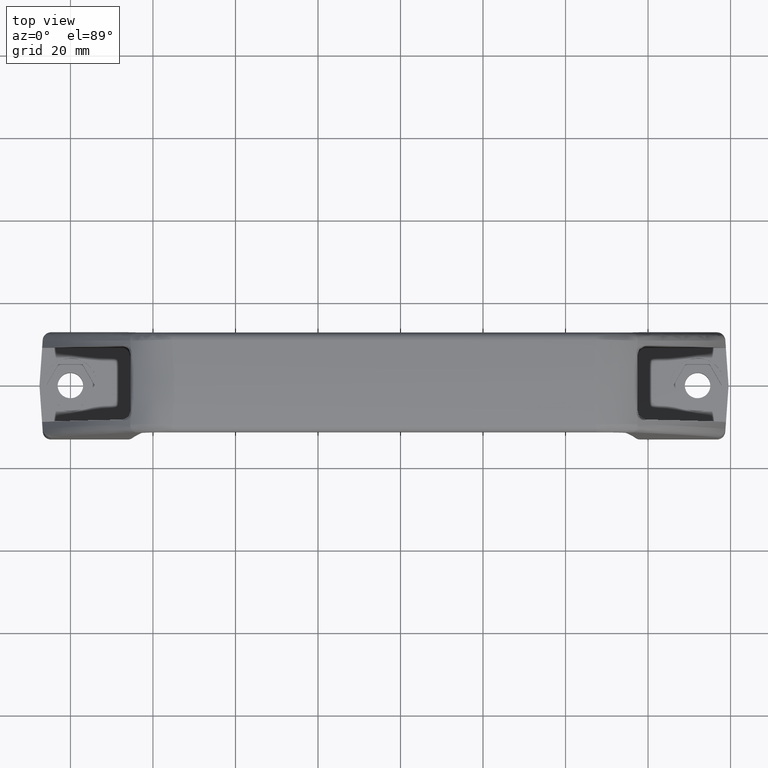
[diagram: clean part render]
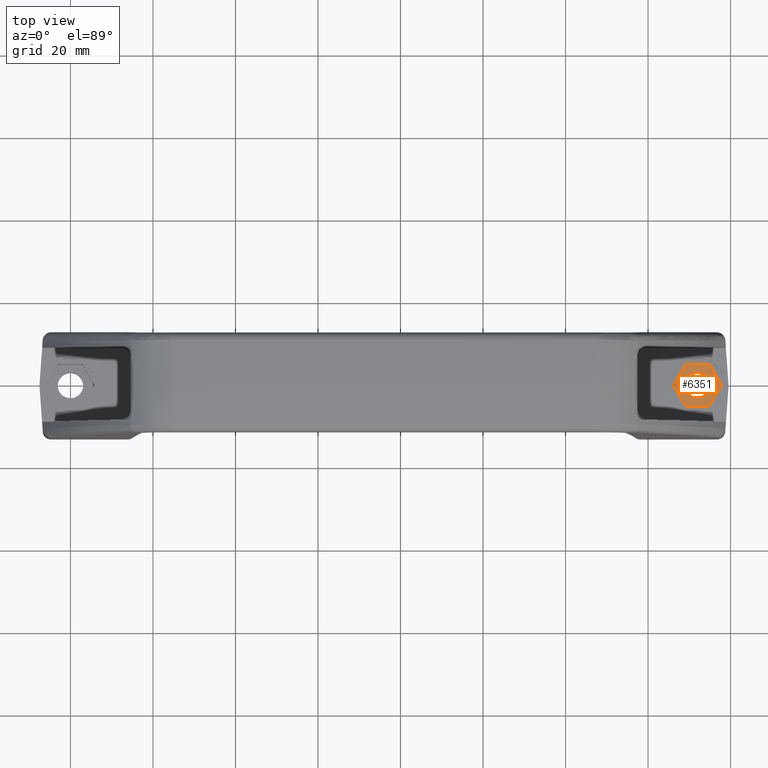
[diagram: same view with one face highlighted and labeled with its STEP entity id]
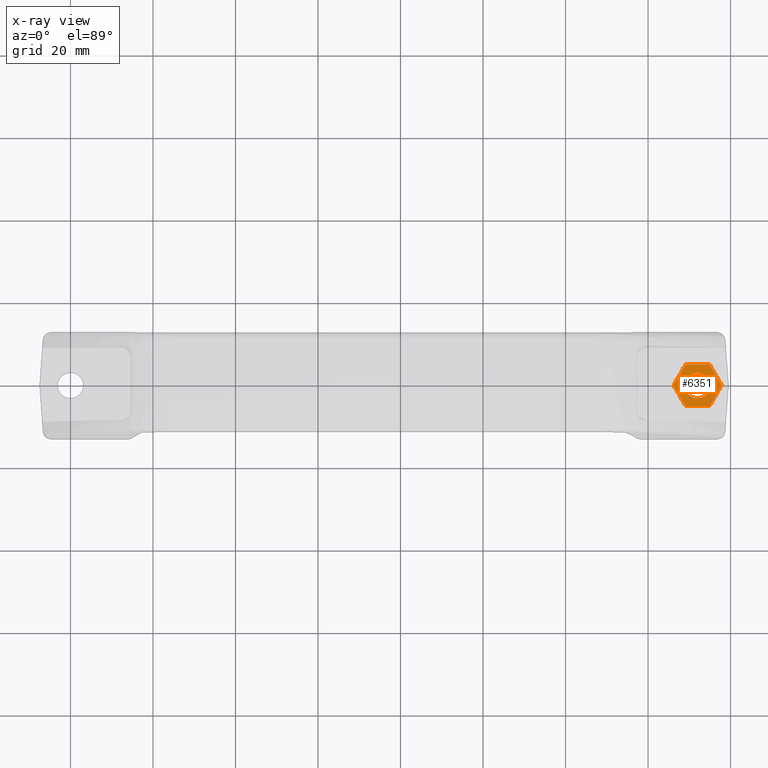
[diagram: x-ray of the same camera — body ghosted, the highlighted face saturated]
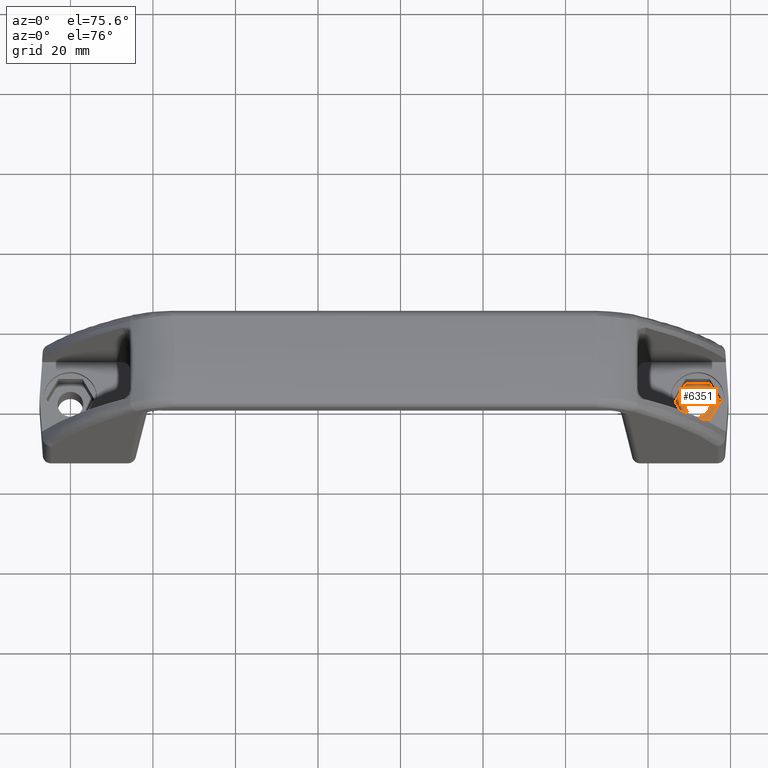
[diagram: same view with one face highlighted and labeled with its STEP entity id]
A machine part, top view. The second image highlights one B-rep face of the part: STEP entity #6351.
The next image is the same camera in x-ray: the body ghosted, the highlighted face saturated — about 0% of this face is hidden behind the body in this view.
A second angle (auxiliary view) of the same face is appended — the face is thin or edge-on in the first view.
In plain terms, the highlighted face is a freeform B-spline surface patch.
Its self-contained STEP definition (entity closure, byte-faithful):
#457=CARTESIAN_POINT('',(151.634101444869600,-3.078329677869707,7.000000617466201));
#458=VERTEX_POINT('',#457);
#464=CARTESIAN_POINT('',(155.100007737520090,0.0,7.000000617466201));
#465=VERTEX_POINT('',#464);
#466=CARTESIAN_POINT('',(151.634101444869630,-3.078329677869708,7.000000617466201));
#467=CARTESIAN_POINT('',(151.816412810037720,-3.100000147242100,7.000000617466201));
#468=CARTESIAN_POINT('',(152.000007590277990,-3.100000147242100,7.000000617466201));
#469=CARTESIAN_POINT('',(155.100007737520170,-3.100000147242100,7.000000617466200));
#470=CARTESIAN_POINT('',(155.100007737520090,0.0,7.000000617466201));
#478=(BOUNDED_CURVE()B_SPLINE_CURVE(2,(#466,#467,#468,#469,#470),.UNSPECIFIED.,.F.,.U.)B_SPLINE_CURVE_WITH_KNOTS((3,2,3),(0.229562473450550,0.250000000000000,0.500000000000000),.UNSPECIFIED.)CURVE()GEOMETRIC_REPRESENTATION_ITEM()RATIONAL_B_SPLINE_CURVE((0.956026754060299,0.976055948257385,1.0,0.707106781186547,1.0))REPRESENTATION_ITEM(''));
#479=EDGE_CURVE('',#458,#465,#478,.T.);
#481=CARTESIAN_POINT('',(152.189258072401910,3.094218022039970,7.000000617466201));
#482=VERTEX_POINT('',#481);
#483=CARTESIAN_POINT('',(155.100007737520090,0.0,7.000000617466201));
#484=CARTESIAN_POINT('',(155.100007737520120,2.916188944829819,7.000000617466200));
#485=CARTESIAN_POINT('',(152.189258072401940,3.094218022039970,7.000000617466201));
#493=(BOUNDED_CURVE()B_SPLINE_CURVE(2,(#483,#484,#485),.UNSPECIFIED.,.F.,.U.)B_SPLINE_CURVE_WITH_KNOTS((3,3),(0.500000000000000,0.739332962177632),.UNSPECIFIED.)CURVE()GEOMETRIC_REPRESENTATION_ITEM()RATIONAL_B_SPLINE_CURVE((1.0,0.719603993358540,0.976072041535317))REPRESENTATION_ITEM(''));
#494=EDGE_CURVE('',#465,#482,#493,.T.);
#568=CARTESIAN_POINT('',(148.900007443035890,0.0,7.000000617466201));
#569=VERTEX_POINT('',#568);
#570=CARTESIAN_POINT('',(152.189258072401880,3.094218022039969,7.000000617466201));
#571=CARTESIAN_POINT('',(152.094721161580680,3.100000147242100,7.000000617466200));
#572=CARTESIAN_POINT('',(152.000007590277990,3.100000147242100,7.000000617466201));
#573=CARTESIAN_POINT('',(148.900007443035950,3.100000147242100,7.000000617466200));
#574=CARTESIAN_POINT('',(148.900007443035890,0.0,7.000000617466201));
#582=(BOUNDED_CURVE()B_SPLINE_CURVE(2,(#570,#571,#572,#573,#574),.UNSPECIFIED.,.F.,.U.)B_SPLINE_CURVE_WITH_KNOTS((3,2,3),(0.739332962177633,0.750000000000000,1.0),.UNSPECIFIED.)CURVE()GEOMETRIC_REPRESENTATION_ITEM()RATIONAL_B_SPLINE_CURVE((0.976072041535319,0.987502787828008,1.0,0.707106781186547,1.0))REPRESENTATION_ITEM(''));
#583=EDGE_CURVE('',#482,#569,#582,.T.);
#585=CARTESIAN_POINT('',(148.900007443035890,0.0,7.000000617466201));
#586=CARTESIAN_POINT('',(148.900007443035950,-2.753341160157968,7.000000617466200));
#587=CARTESIAN_POINT('',(151.634101444869630,-3.078329677869708,7.000000617466201));
#595=(BOUNDED_CURVE()B_SPLINE_CURVE(2,(#585,#586,#587),.UNSPECIFIED.,.F.,.U.)B_SPLINE_CURVE_WITH_KNOTS((3,3),(0.0,0.229562473450550),.UNSPECIFIED.)CURVE()GEOMETRIC_REPRESENTATION_ITEM()RATIONAL_B_SPLINE_CURVE((1.0,0.731050832929162,0.956026754060299))REPRESENTATION_ITEM(''));
#596=EDGE_CURVE('',#569,#458,#595,.T.);
#6178=CARTESIAN_POINT('',(154.915626588174010,-5.050000239862700,7.000000617466201));
#6179=VERTEX_POINT('',#6178);
#6185=CARTESIAN_POINT('',(149.084388592383390,-5.050000239862190,7.000000617466201));
#6186=VERTEX_POINT('',#6185);
#6187=CARTESIAN_POINT('',(154.915626588174010,-5.050000239862700,7.000000617466201));
#6188=CARTESIAN_POINT('',(149.084388592383390,-5.050000239862190,7.000000617466201));
#6189=QUASI_UNIFORM_CURVE('',1,(#6187,#6188),.UNSPECIFIED.,.F.,.U.);
#6190=EDGE_CURVE('',#6179,#6186,#6189,.T.);
#6212=CARTESIAN_POINT('',(157.831245586065510,-1.477929E-012,7.000000617466201));
#6213=VERTEX_POINT('',#6212);
#6219=CARTESIAN_POINT('',(157.831245586065510,-1.477929E-012,7.000000617466201));
#6220=CARTESIAN_POINT('',(154.915626588174010,-5.050000239862700,7.000000617466201));
#6221=QUASI_UNIFORM_CURVE('',1,(#6219,#6220),.UNSPECIFIED.,.F.,.U.);
#6222=EDGE_CURVE('',#6213,#6179,#6221,.T.);
#6240=CARTESIAN_POINT('',(154.915626588171990,5.050000239862119,7.000000617466201));
#6241=VERTEX_POINT('',#6240);
#6247=CARTESIAN_POINT('',(154.915626588171990,5.050000239862119,7.000000617466201));
#6248=CARTESIAN_POINT('',(157.831245586065510,-1.477929E-012,7.000000617466201));
#6249=QUASI_UNIFORM_CURVE('',1,(#6247,#6248),.UNSPECIFIED.,.F.,.U.);
#6250=EDGE_CURVE('',#6241,#6213,#6249,.T.);
#6268=CARTESIAN_POINT('',(149.084388592381200,5.050000239862510,7.000000617466201));
#6269=VERTEX_POINT('',#6268);
#6275=CARTESIAN_POINT('',(149.084388592381200,5.050000239862510,7.000000617466201));
#6276=CARTESIAN_POINT('',(154.915626588171990,5.050000239862119,7.000000617466201));
#6277=QUASI_UNIFORM_CURVE('',1,(#6275,#6276),.UNSPECIFIED.,.F.,.U.);
#6278=EDGE_CURVE('',#6269,#6241,#6277,.T.);
#6296=CARTESIAN_POINT('',(146.168769594490190,1.421085E-012,7.000000617466201));
#6297=VERTEX_POINT('',#6296);
#6303=CARTESIAN_POINT('',(146.168769594490190,1.421085E-012,7.000000617466201));
#6304=CARTESIAN_POINT('',(149.084388592381200,5.050000239862510,7.000000617466201));
#6305=QUASI_UNIFORM_CURVE('',1,(#6303,#6304),.UNSPECIFIED.,.F.,.U.);
#6306=EDGE_CURVE('',#6297,#6269,#6305,.T.);
#6323=CARTESIAN_POINT('',(149.084388592383390,-5.050000239862190,7.000000617466201));
#6324=CARTESIAN_POINT('',(146.168769594490190,1.421085E-012,7.000000617466201));
#6325=QUASI_UNIFORM_CURVE('',1,(#6323,#6324),.UNSPECIFIED.,.F.,.U.);
#6326=EDGE_CURVE('',#6186,#6297,#6325,.T.);
#6332=CARTESIAN_POINT('',(145.586220793308510,5.554495244249022,7.000000617466201));
#6333=CARTESIAN_POINT('',(158.413794804329710,5.554495244249022,7.000000617466201));
#6334=CARTESIAN_POINT('',(145.586220793308510,-5.554495515152336,7.000000617466201));
#6335=CARTESIAN_POINT('',(158.413794804329710,-5.554495515152336,7.000000617466201));
#6336=B_SPLINE_SURFACE_WITH_KNOTS('',1,1,((#6332,#6334),(#6333,#6335)),.UNSPECIFIED.,.F.,.F.,.U.,(2,2),(2,2),(0.0,12.827574011021200),(0.0,11.108990759401360),.UNSPECIFIED.);
#6337=ORIENTED_EDGE('',*,*,#6326,.F.);
#6338=ORIENTED_EDGE('',*,*,#6190,.F.);
#6339=ORIENTED_EDGE('',*,*,#6222,.F.);
#6340=ORIENTED_EDGE('',*,*,#6250,.F.);
#6341=ORIENTED_EDGE('',*,*,#6278,.F.);
#6342=ORIENTED_EDGE('',*,*,#6306,.F.);
#6343=EDGE_LOOP('',(#6337,#6338,#6339,#6340,#6341,#6342));
#6344=FACE_OUTER_BOUND('',#6343,.T.);
#6345=ORIENTED_EDGE('',*,*,#494,.F.);
#6346=ORIENTED_EDGE('',*,*,#479,.F.);
#6347=ORIENTED_EDGE('',*,*,#596,.F.);
#6348=ORIENTED_EDGE('',*,*,#583,.F.);
#6349=EDGE_LOOP('',(#6345,#6346,#6347,#6348));
#6350=FACE_BOUND('',#6349,.T.);
#6351=ADVANCED_FACE('',(#6344,#6350),#6336,.F.);